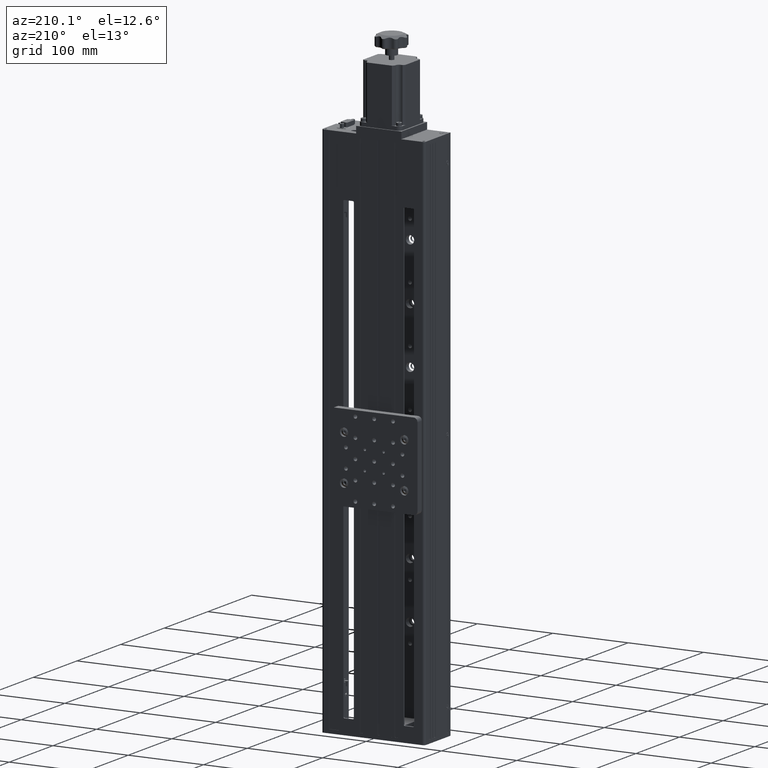
[diagram: clean part render]
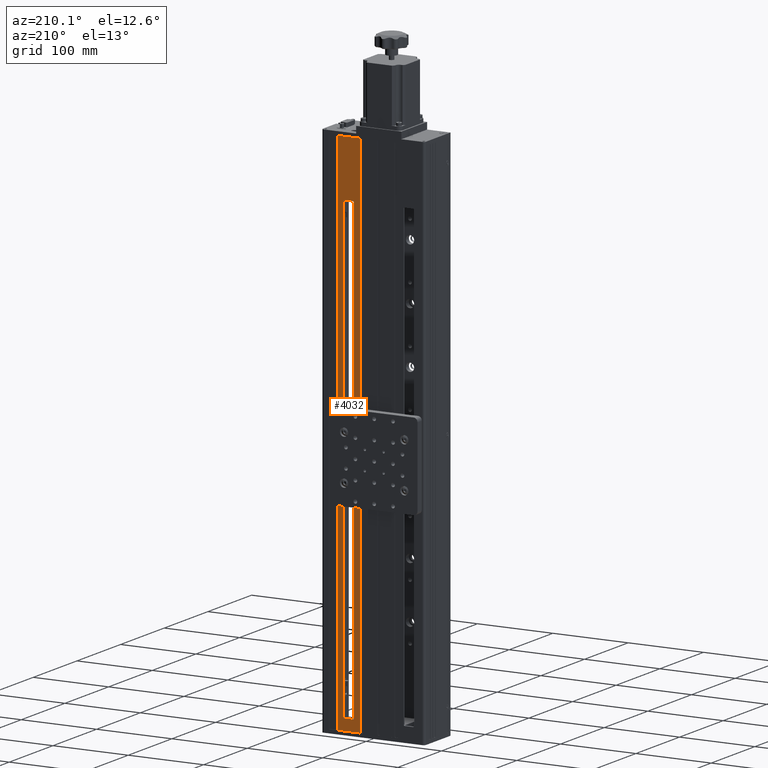
[diagram: same view with one face highlighted and labeled with its STEP entity id]
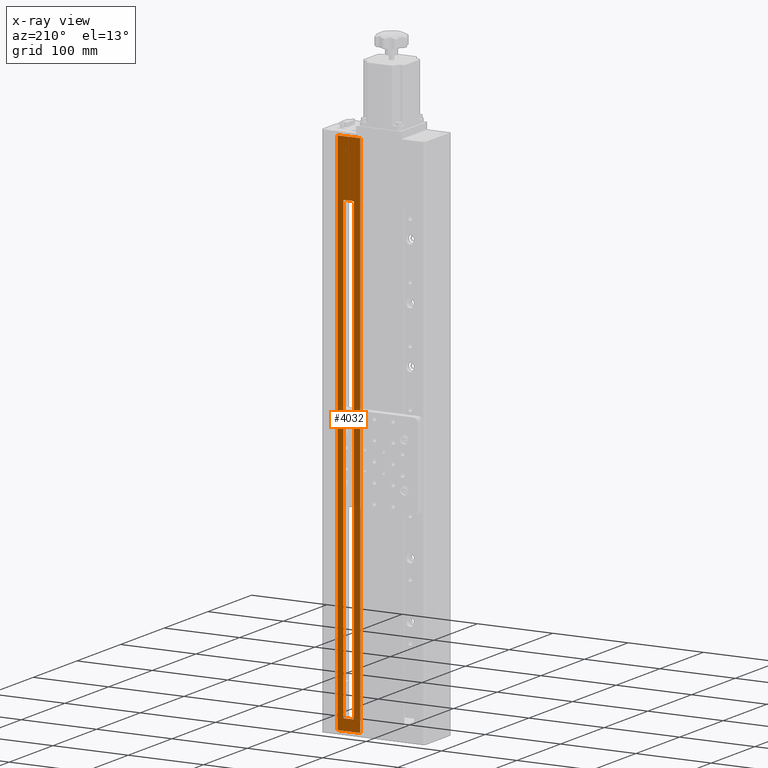
[diagram: x-ray of the same camera — body ghosted, the highlighted face saturated]
A machine part, auxiliary view. The second image highlights one B-rep face of the part: STEP entity #4032.
The next image is the same camera in x-ray: the body ghosted, the highlighted face saturated — about 0% of this face is hidden behind the body in this view.
In plain terms, the highlighted planar face has unit normal (0, 1, 0).
Its self-contained STEP definition (entity closure, byte-faithful):
#262 = VECTOR ( 'NONE', #14699, 1000.000000000000000 ) ;
#337 = CARTESIAN_POINT ( 'NONE',  ( -89.23569268325130100, 33.82987360368544900, -583.8342676332765700 ) ) ;
#812 = VERTEX_POINT ( 'NONE', #25975 ) ;
#1230 = EDGE_CURVE ( 'NONE', #1791, #34502, #12951, .T. ) ;
#1791 = VERTEX_POINT ( 'NONE', #40837 ) ;
#2191 = DIRECTION ( 'NONE',  ( -0.0000000000000000000, -0.0000000000000000000, -1.000000000000000000 ) ) ;
#4032 = ADVANCED_FACE ( 'NONE', ( #31017, #14035 ), #20573, .T. ) ;
#5204 = CARTESIAN_POINT ( 'NONE',  ( -103.2356926832512900, 33.82987360368544900, -583.8342676332765700 ) ) ;
#5731 = EDGE_CURVE ( 'NONE', #20557, #13937, #31523, .T. ) ;
#5969 = VECTOR ( 'NONE', #40440, 1000.000000000000000 ) ;
#6276 = EDGE_LOOP ( 'NONE', ( #13328, #15994, #7021, #39750 ) ) ;
#6314 = CARTESIAN_POINT ( 'NONE',  ( -111.7356926832513000, 33.82987360368544900, -598.8342676332768000 ) ) ;
#6592 = EDGE_CURVE ( 'NONE', #34832, #8525, #13962, .T. ) ;
#6938 = CARTESIAN_POINT ( 'NONE',  ( -90.73569268325130100, 33.82987360368544900, -582.3342676332766800 ) ) ;
#7021 = ORIENTED_EDGE ( 'NONE', *, *, #6592, .T. ) ;
#7239 = AXIS2_PLACEMENT_3D ( 'NONE', #6938, #29319, #10164 ) ;
#7518 = DIRECTION ( 'NONE',  ( 0.0000000000000000000, -0.0000000000000000000, 1.000000000000000000 ) ) ;
#7774 = DIRECTION ( 'NONE',  ( 0.0000000000000000000, 1.000000000000000000, 0.0000000000000000000 ) ) ;
#7883 = CARTESIAN_POINT ( 'NONE',  ( -103.2356926832512900, 33.82987360368544900, -582.3342676332766800 ) ) ;
#7929 = CARTESIAN_POINT ( 'NONE',  ( -111.7356926832513000, 33.82987360368544900, 101.1657323667232800 ) ) ;
#8035 = ORIENTED_EDGE ( 'NONE', *, *, #16162, .T. ) ;
#8525 = VERTEX_POINT ( 'NONE', #37371 ) ;
#8530 = CARTESIAN_POINT ( 'NONE',  ( -111.7356926832513000, 33.82987360368544900, 101.1657323667232800 ) ) ;
#8554 = DIRECTION ( 'NONE',  ( -0.0000000000000000000, -1.000000000000000000, -0.0000000000000000000 ) ) ;
#9056 = VERTEX_POINT ( 'NONE', #18755 ) ;
#9059 = EDGE_CURVE ( 'NONE', #9056, #38415, #27160, .T. ) ;
#9244 = EDGE_CURVE ( 'NONE', #1791, #812, #14185, .T. ) ;
#9643 = CARTESIAN_POINT ( 'NONE',  ( -81.73569268325130100, 33.82987360368544900, 101.1657323667232800 ) ) ;
#9692 = VERTEX_POINT ( 'NONE', #7883 ) ;
#9907 = CARTESIAN_POINT ( 'NONE',  ( -90.73569268325130100, 33.82987360368544900, 24.66573236672336800 ) ) ;
#10007 = VERTEX_POINT ( 'NONE', #37948 ) ;
#10164 = DIRECTION ( 'NONE',  ( 0.0000000000000000000, 0.0000000000000000000, 1.000000000000000000 ) ) ;
#10525 = EDGE_CURVE ( 'NONE', #20557, #34502, #31213, .T. ) ;
#11471 = CARTESIAN_POINT ( 'NONE',  ( -111.7356926832513000, 33.82987360368544900, -598.8342676332768000 ) ) ;
#11901 = CARTESIAN_POINT ( 'NONE',  ( -111.7356926832513000, 33.82987360368544900, 101.1657323667232800 ) ) ;
#12925 = VECTOR ( 'NONE', #31745, 1000.000000000000000 ) ;
#12951 = LINE ( 'NONE', #33773, #29951 ) ;
#13328 = ORIENTED_EDGE ( 'NONE', *, *, #17282, .F. ) ;
#13937 = VERTEX_POINT ( 'NONE', #23019 ) ;
#13962 = LINE ( 'NONE', #36639, #12925 ) ;
#14035 = FACE_OUTER_BOUND ( 'NONE', #6276, .T. ) ;
#14185 = CIRCLE ( 'NONE', #29581, 1.500000000000001300 ) ;
#14699 = DIRECTION ( 'NONE',  ( 1.000000000000000000, 0.0000000000000000000, 0.0000000000000000000 ) ) ;
#15994 = ORIENTED_EDGE ( 'NONE', *, *, #39087, .F. ) ;
#16093 = DIRECTION ( 'NONE',  ( -0.0000000000000000000, -0.0000000000000000000, -1.000000000000000000 ) ) ;
#16162 = EDGE_CURVE ( 'NONE', #9692, #38415, #40307, .T. ) ;
#16263 = AXIS2_PLACEMENT_3D ( 'NONE', #27702, #8554, #30962 ) ;
#16315 = ORIENTED_EDGE ( 'NONE', *, *, #31062, .T. ) ;
#16837 = VECTOR ( 'NONE', #2191, 1000.000000000000000 ) ;
#17282 = EDGE_CURVE ( 'NONE', #41175, #10007, #17330, .T. ) ;
#17330 = LINE ( 'NONE', #11471, #262 ) ;
#18199 = DIRECTION ( 'NONE',  ( -1.000000000000000000, -0.0000000000000000000, -0.0000000000000000000 ) ) ;
#18675 = VECTOR ( 'NONE', #18199, 1000.000000000000000 ) ;
#18755 = CARTESIAN_POINT ( 'NONE',  ( -90.73569268325130100, 33.82987360368544900, -583.8342676332765700 ) ) ;
#18827 = EDGE_LOOP ( 'NONE', ( #40621, #8035, #19438, #16315, #38076, #23377, #35297, #22751 ) ) ;
#19438 = ORIENTED_EDGE ( 'NONE', *, *, #9059, .F. ) ;
#20557 = VERTEX_POINT ( 'NONE', #31633 ) ;
#20573 = PLANE ( 'NONE',  #40527 ) ;
#22751 = ORIENTED_EDGE ( 'NONE', *, *, #9244, .T. ) ;
#23019 = CARTESIAN_POINT ( 'NONE',  ( -89.23569268325130100, 33.82987360368544900, -582.3342676332766800 ) ) ;
#23032 = LINE ( 'NONE', #5204, #40041 ) ;
#23377 = ORIENTED_EDGE ( 'NONE', *, *, #10525, .T. ) ;
#24284 = EDGE_CURVE ( 'NONE', #8525, #10007, #28886, .T. ) ;
#24345 = DIRECTION ( 'NONE',  ( 0.0000000000000000000, 0.0000000000000000000, 1.000000000000000000 ) ) ;
#24762 = CARTESIAN_POINT ( 'NONE',  ( -103.2356926832512900, 33.82987360368544900, -583.8342676332765700 ) ) ;
#25521 = EDGE_CURVE ( 'NONE', #9692, #812, #23032, .T. ) ;
#25975 = CARTESIAN_POINT ( 'NONE',  ( -103.2356926832512900, 33.82987360368544900, 24.66573236672336800 ) ) ;
#27160 = LINE ( 'NONE', #24762, #18675 ) ;
#27702 = CARTESIAN_POINT ( 'NONE',  ( -101.7356926832512900, 33.82987360368544900, -582.3342676332766800 ) ) ;
#28713 = DIRECTION ( 'NONE',  ( 0.0000000000000000000, 0.0000000000000000000, 1.000000000000000000 ) ) ;
#28763 = DIRECTION ( 'NONE',  ( -0.0000000000000000000, -1.000000000000000000, -0.0000000000000000000 ) ) ;
#28886 = LINE ( 'NONE', #9643, #37399 ) ;
#29319 = DIRECTION ( 'NONE',  ( -0.0000000000000000000, -1.000000000000000000, -0.0000000000000000000 ) ) ;
#29581 = AXIS2_PLACEMENT_3D ( 'NONE', #39406, #39394, #39307 ) ;
#29894 = CIRCLE ( 'NONE', #7239, 1.499999999999945800 ) ;
#29951 = VECTOR ( 'NONE', #33228, 1000.000000000000000 ) ;
#30801 = CARTESIAN_POINT ( 'NONE',  ( -90.73569268325130100, 33.82987360368544900, 26.16573236672331500 ) ) ;
#30962 = DIRECTION ( 'NONE',  ( 0.0000000000000000000, 0.0000000000000000000, 1.000000000000000000 ) ) ;
#31017 = FACE_BOUND ( 'NONE', #18827, .T. ) ;
#31062 = EDGE_CURVE ( 'NONE', #9056, #13937, #29894, .T. ) ;
#31213 = CIRCLE ( 'NONE', #36623, 1.500000000000001300 ) ;
#31523 = LINE ( 'NONE', #337, #5969 ) ;
#31633 = CARTESIAN_POINT ( 'NONE',  ( -89.23569268325130100, 33.82987360368544900, 24.66573236672336800 ) ) ;
#31745 = DIRECTION ( 'NONE',  ( 1.000000000000000000, 0.0000000000000000000, 0.0000000000000000000 ) ) ;
#33228 = DIRECTION ( 'NONE',  ( 1.000000000000000000, 0.0000000000000000000, 0.0000000000000000000 ) ) ;
#33773 = CARTESIAN_POINT ( 'NONE',  ( -103.2356926832512900, 33.82987360368544900, 26.16573236672331500 ) ) ;
#34502 = VERTEX_POINT ( 'NONE', #30801 ) ;
#34832 = VERTEX_POINT ( 'NONE', #8530 ) ;
#35297 = ORIENTED_EDGE ( 'NONE', *, *, #1230, .F. ) ;
#36623 = AXIS2_PLACEMENT_3D ( 'NONE', #9907, #28763, #28713 ) ;
#36639 = CARTESIAN_POINT ( 'NONE',  ( -111.7356926832513000, 33.82987360368544900, 101.1657323667232800 ) ) ;
#37371 = CARTESIAN_POINT ( 'NONE',  ( -81.73569268325130100, 33.82987360368544900, 101.1657323667232800 ) ) ;
#37399 = VECTOR ( 'NONE', #16093, 1000.000000000000000 ) ;
#37948 = CARTESIAN_POINT ( 'NONE',  ( -81.73569268325130100, 33.82987360368544900, -598.8342676332768000 ) ) ;
#38076 = ORIENTED_EDGE ( 'NONE', *, *, #5731, .F. ) ;
#38415 = VERTEX_POINT ( 'NONE', #40740 ) ;
#39087 = EDGE_CURVE ( 'NONE', #34832, #41175, #41338, .T. ) ;
#39307 = DIRECTION ( 'NONE',  ( 0.0000000000000000000, 0.0000000000000000000, 1.000000000000000000 ) ) ;
#39394 = DIRECTION ( 'NONE',  ( -0.0000000000000000000, -1.000000000000000000, -0.0000000000000000000 ) ) ;
#39406 = CARTESIAN_POINT ( 'NONE',  ( -101.7356926832512900, 33.82987360368544900, 24.66573236672331500 ) ) ;
#39750 = ORIENTED_EDGE ( 'NONE', *, *, #24284, .T. ) ;
#40041 = VECTOR ( 'NONE', #24345, 1000.000000000000000 ) ;
#40307 = CIRCLE ( 'NONE', #16263, 1.499999999999945800 ) ;
#40440 = DIRECTION ( 'NONE',  ( 1.137523590804463700E-017, -0.0000000000000000000, -1.000000000000000000 ) ) ;
#40527 = AXIS2_PLACEMENT_3D ( 'NONE', #7929, #7774, #7518 ) ;
#40621 = ORIENTED_EDGE ( 'NONE', *, *, #25521, .F. ) ;
#40740 = CARTESIAN_POINT ( 'NONE',  ( -101.7356926832512900, 33.82987360368544900, -583.8342676332765700 ) ) ;
#40837 = CARTESIAN_POINT ( 'NONE',  ( -101.7356926832512900, 33.82987360368544900, 26.16573236672331500 ) ) ;
#41175 = VERTEX_POINT ( 'NONE', #6314 ) ;
#41338 = LINE ( 'NONE', #11901, #16837 ) ;